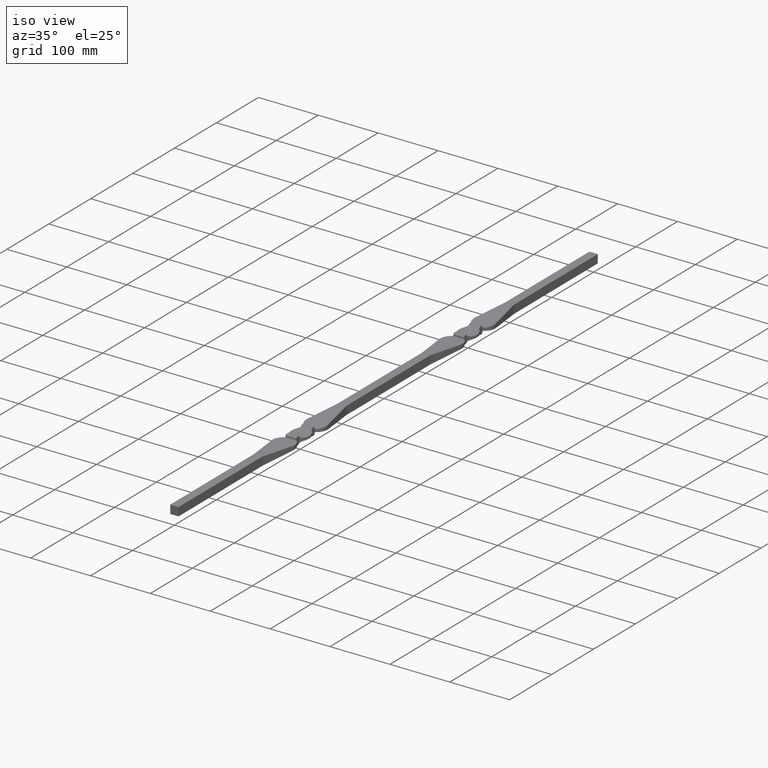
[diagram: clean part render]
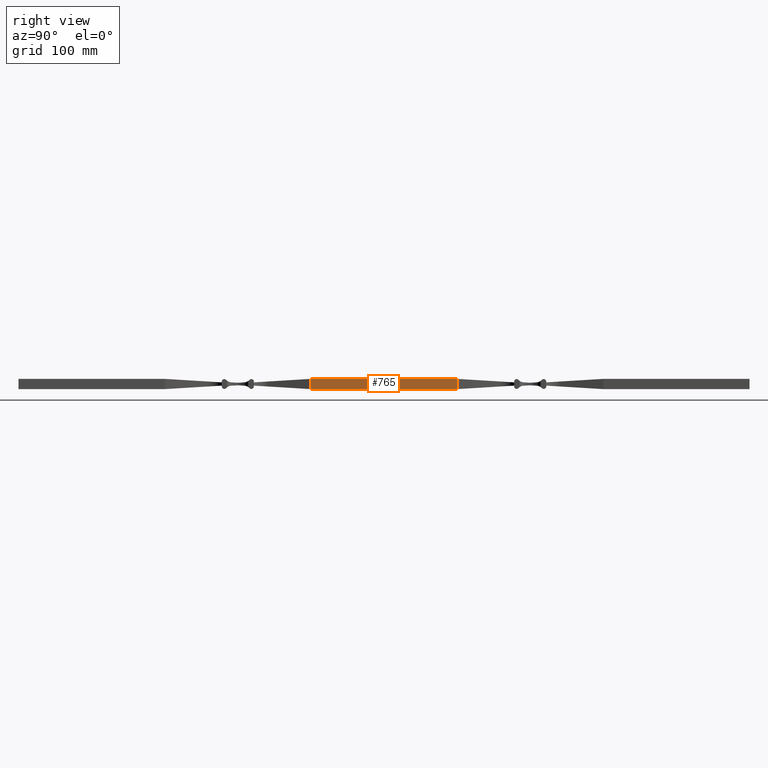
[diagram: tour spotlight — one face highlighted and labeled with its STEP entity id]
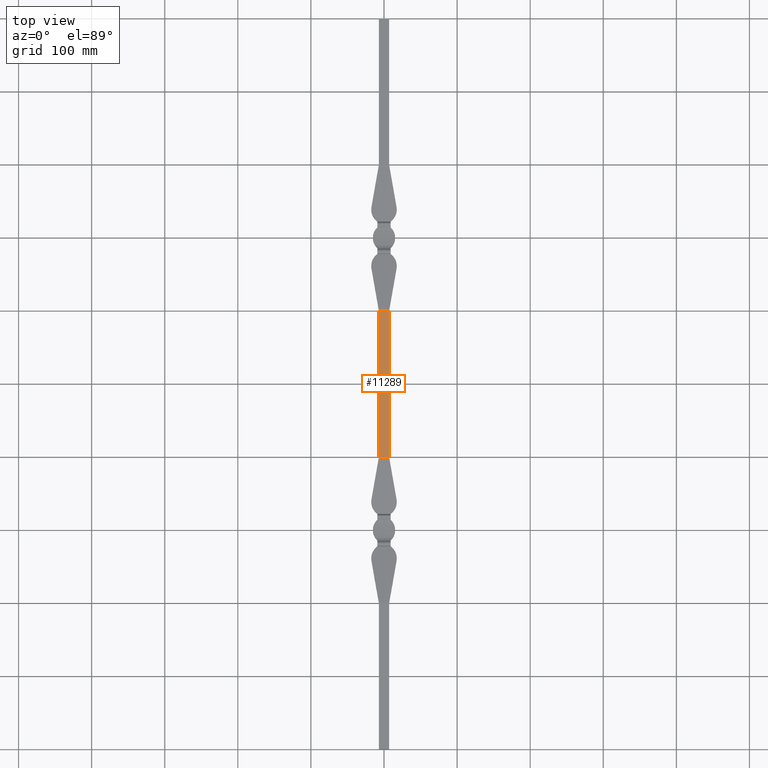
[diagram: tour spotlight — one face highlighted and labeled with its STEP entity id]
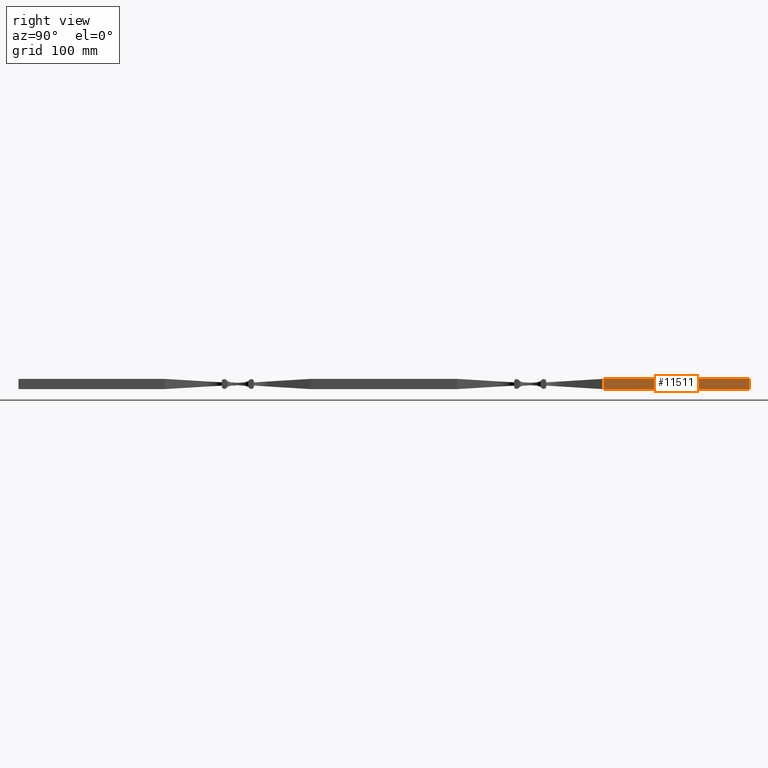
[diagram: tour spotlight — one face highlighted and labeled with its STEP entity id]
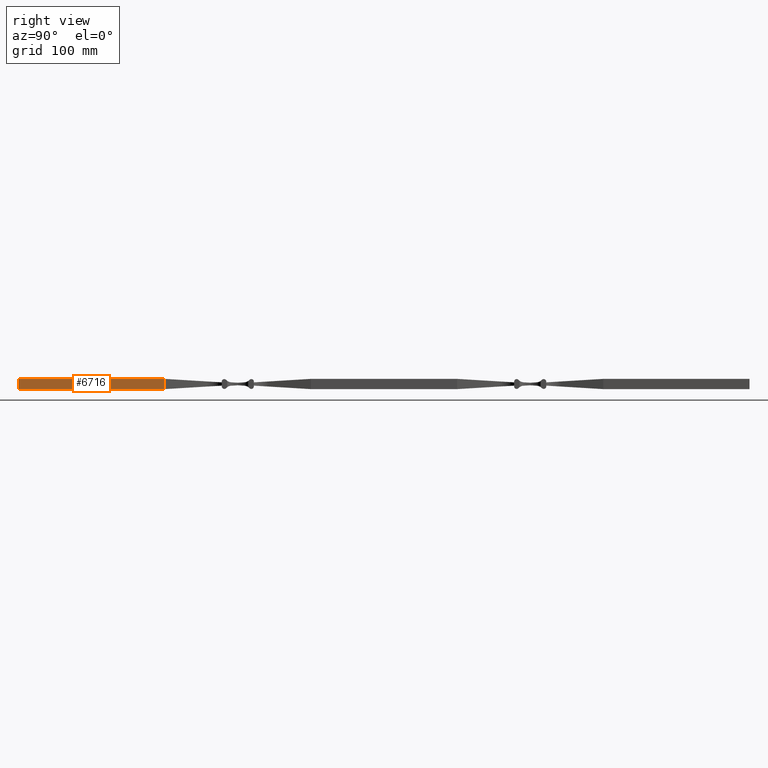
[diagram: tour spotlight — one face highlighted and labeled with its STEP entity id]
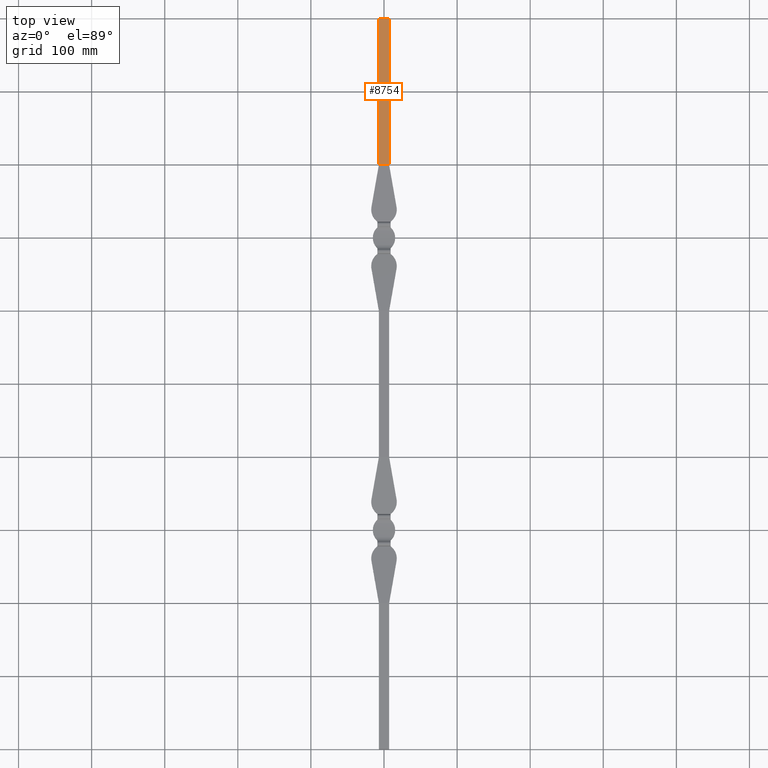
[diagram: tour spotlight — one face highlighted and labeled with its STEP entity id]
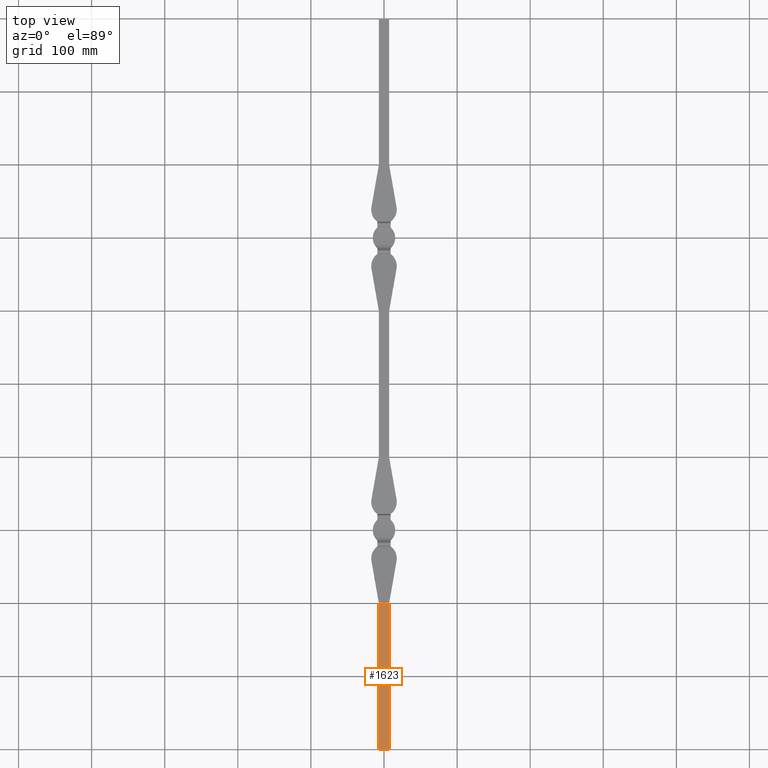
[diagram: tour spotlight — one face highlighted and labeled with its STEP entity id]
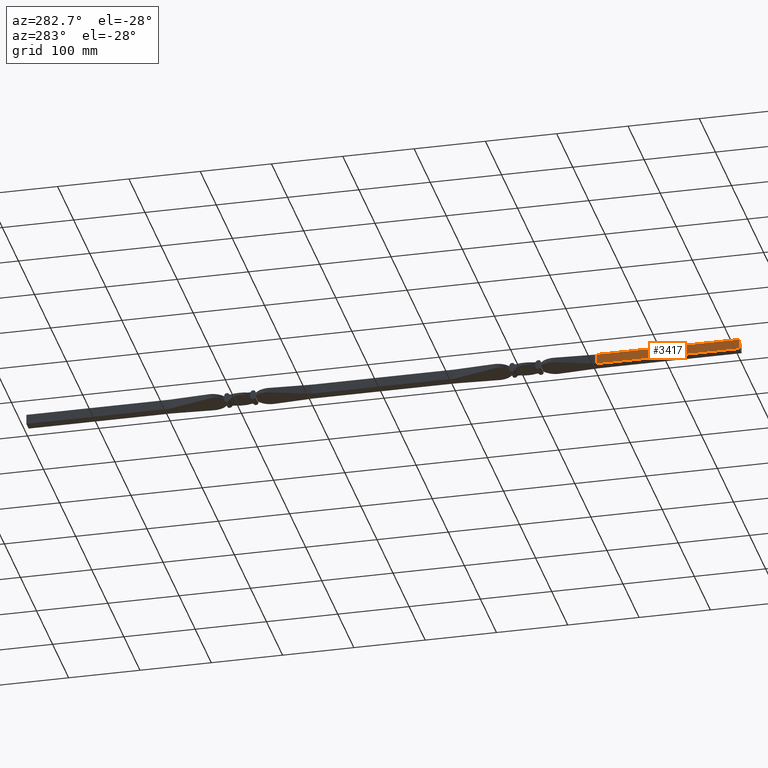
[diagram: tour spotlight — one face highlighted and labeled with its STEP entity id]
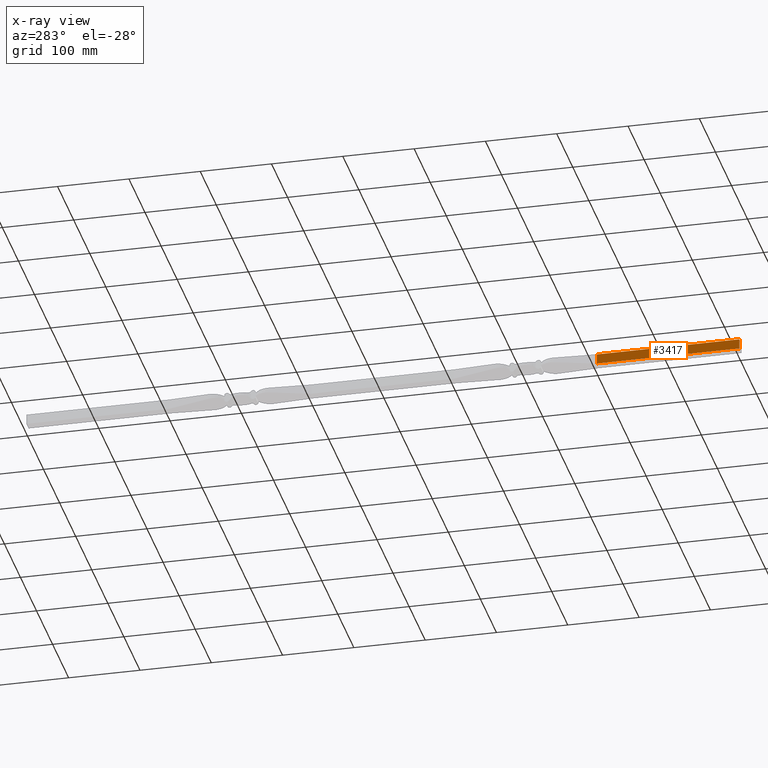
[diagram: x-ray of the same camera — body ghosted, this tour face saturated]
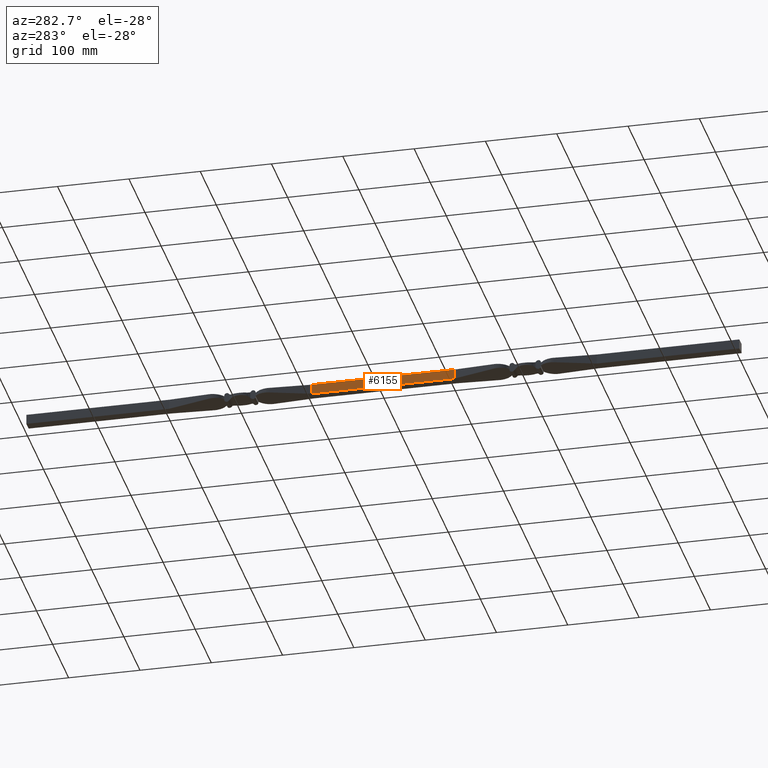
[diagram: tour spotlight — one face highlighted and labeled with its STEP entity id]
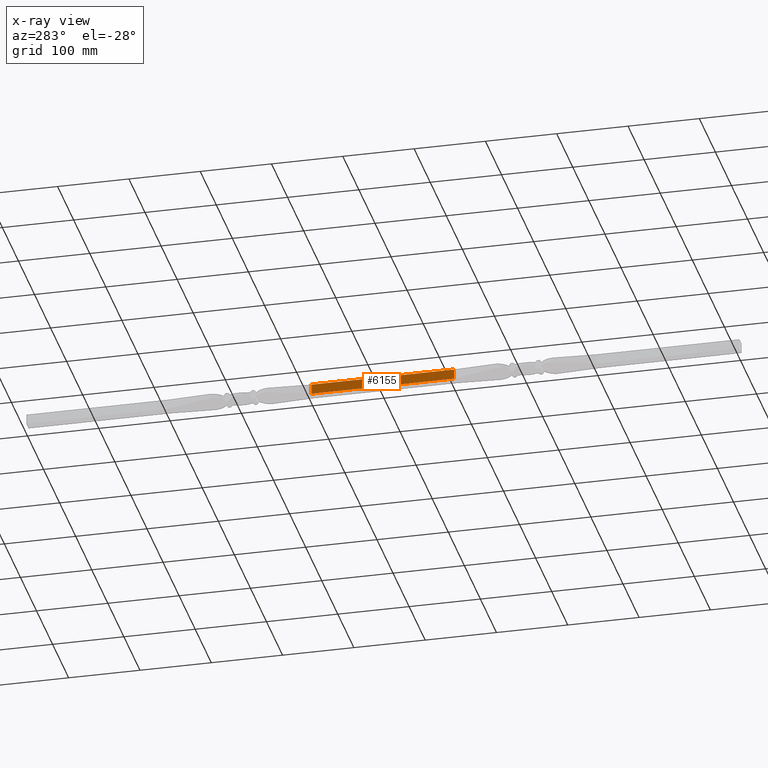
[diagram: x-ray of the same camera — body ghosted, this tour face saturated]
A machine part: a face-by-face anatomy tour. The part has 302 B-rep faces; the first image is the clean iso view, then the 8 largest visible faces are spotlighted one at a time (largest first), each with its STEP entity span.

Face 1 — right view, entity #765. In plain terms, the highlighted planar face has unit normal (-1, 0, 0).
Definition (entity closure, byte-faithful):
#228 = DIRECTION ( 'NONE',  ( 0.000000000000000000, 0.000000000000000000, -1.000000000000000000 ) ) ;
#368 = VERTEX_POINT ( 'NONE', #2850 ) ;
#765 = ADVANCED_FACE ( 'NONE', ( #7538 ), #7399, .F. ) ;
#926 = ORIENTED_EDGE ( 'NONE', *, *, #6815, .F. ) ;
#943 = DIRECTION ( 'NONE',  ( -1.000000000000000000, 4.625929269271485322E-15, 0.000000000000000000 ) ) ;
#1066 = VECTOR ( 'NONE', #228, 1000.000000000000000 ) ;
#1409 = CARTESIAN_POINT ( 'NONE',  ( 7.000000000000000888, -100.0000000000000000, 7.000000000000000000 ) ) ;
#2505 = VERTEX_POINT ( 'NONE', #5038 ) ;
#2771 = EDGE_CURVE ( 'NONE', #368, #12831, #13048, .T. ) ;
#2850 = CARTESIAN_POINT ( 'NONE',  ( 7.000000000000000888, -300.0000000000000000, 7.000000000000000000 ) ) ;
#3139 = CARTESIAN_POINT ( 'NONE',  ( 6.999999999998521183, -419.7989898732233769, -7.000000000000000000 ) ) ;
#3245 = VECTOR ( 'NONE', #10994, 1000.000000000000000 ) ;
#3404 = LINE ( 'NONE', #1409, #1066 ) ;
#3523 = VERTEX_POINT ( 'NONE', #10804 ) ;
#4047 = ORIENTED_EDGE ( 'NONE', *, *, #2771, .F. ) ;
#4194 = DIRECTION ( 'NONE',  ( -4.625929269271485322E-15, -1.000000000000000000, 0.000000000000000000 ) ) ;
#5038 = CARTESIAN_POINT ( 'NONE',  ( 7.000000000000000888, -300.0000000000000000, -7.000000000000000000 ) ) ;
#5173 = VECTOR ( 'NONE', #11213, 1000.000000000000000 ) ;
#5786 = DIRECTION ( 'NONE',  ( 4.625929269271485322E-15, 1.000000000000000000, -0.000000000000000000 ) ) ;
#6777 = EDGE_CURVE ( 'NONE', #368, #2505, #8105, .T. ) ;
#6815 = EDGE_CURVE ( 'NONE', #12831, #3523, #3404, .T. ) ;
#6911 = EDGE_CURVE ( 'NONE', #2505, #3523, #6939, .T. ) ;
#6939 = LINE ( 'NONE', #8044, #9297 ) ;
#7033 = CARTESIAN_POINT ( 'NONE',  ( 7.000000000000000888, -100.0000000000000284, 7.000000000000000000 ) ) ;
#7399 = PLANE ( 'NONE',  #8993 ) ;
#7538 = FACE_OUTER_BOUND ( 'NONE', #11767, .T. ) ;
#8044 = CARTESIAN_POINT ( 'NONE',  ( 6.999999999998521183, -419.7989898732233769, -7.000000000000000000 ) ) ;
#8105 = LINE ( 'NONE', #8797, #3245 ) ;
#8797 = CARTESIAN_POINT ( 'NONE',  ( 7.000000000000000888, -300.0000000000000568, 7.000000000000000000 ) ) ;
#8993 = AXIS2_PLACEMENT_3D ( 'NONE', #3139, #943, #4194 ) ;
#9297 = VECTOR ( 'NONE', #5786, 1000.000000000000000 ) ;
#10139 = CARTESIAN_POINT ( 'NONE',  ( 6.999999999998521183, -419.7989898732233769, 7.000000000000000000 ) ) ;
#10803 = ORIENTED_EDGE ( 'NONE', *, *, #6777, .T. ) ;
#10804 = CARTESIAN_POINT ( 'NONE',  ( 7.000000000000000888, -100.0000000000000284, -7.000000000000000000 ) ) ;
#10994 = DIRECTION ( 'NONE',  ( 0.000000000000000000, 0.000000000000000000, -1.000000000000000000 ) ) ;
#11213 = DIRECTION ( 'NONE',  ( 4.625929269271485322E-15, 1.000000000000000000, -0.000000000000000000 ) ) ;
#11637 = ORIENTED_EDGE ( 'NONE', *, *, #6911, .T. ) ;
#11767 = EDGE_LOOP ( 'NONE', ( #4047, #10803, #11637, #926 ) ) ;
#12831 = VERTEX_POINT ( 'NONE', #7033 ) ;
#13048 = LINE ( 'NONE', #10139, #5173 ) ;

Face 2 — top view, entity #11289. In plain terms, the highlighted planar face has unit normal (0, 0, -1).
Definition (entity closure, byte-faithful):
#368 = VERTEX_POINT ( 'NONE', #2850 ) ;
#762 = ORIENTED_EDGE ( 'NONE', *, *, #7687, .F. ) ;
#843 = VECTOR ( 'NONE', #4407, 1000.000000000000000 ) ;
#1443 = DIRECTION ( 'NONE',  ( -1.000000000000000000, 0.000000000000000000, 0.000000000000000000 ) ) ;
#1488 = CARTESIAN_POINT ( 'NONE',  ( 0.000000000000000000, -100.0000000000000000, 7.000000000000000000 ) ) ;
#1734 = ORIENTED_EDGE ( 'NONE', *, *, #8835, .F. ) ;
#1961 = DIRECTION ( 'NONE',  ( -1.000000000000000000, 0.000000000000000000, 0.000000000000000000 ) ) ;
#2044 = VECTOR ( 'NONE', #1961, 1000.000000000000000 ) ;
#2538 = AXIS2_PLACEMENT_3D ( 'NONE', #7061, #3903, #2883 ) ;
#2771 = EDGE_CURVE ( 'NONE', #368, #12831, #13048, .T. ) ;
#2850 = CARTESIAN_POINT ( 'NONE',  ( 7.000000000000000888, -300.0000000000000000, 7.000000000000000000 ) ) ;
#2883 = DIRECTION ( 'NONE',  ( -1.000000000000000000, 0.000000000000000000, 0.000000000000000000 ) ) ;
#3226 = CARTESIAN_POINT ( 'NONE',  ( -7.000000000000000888, -99.99999999999997158, 7.000000000000000000 ) ) ;
#3573 = LINE ( 'NONE', #1488, #10121 ) ;
#3903 = DIRECTION ( 'NONE',  ( 0.000000000000000000, 0.000000000000000000, -1.000000000000000000 ) ) ;
#4407 = DIRECTION ( 'NONE',  ( 4.625929269271485322E-15, 1.000000000000000000, -0.000000000000000000 ) ) ;
#4747 = ORIENTED_EDGE ( 'NONE', *, *, #6974, .T. ) ;
#5173 = VECTOR ( 'NONE', #11213, 1000.000000000000000 ) ;
#5470 = FACE_OUTER_BOUND ( 'NONE', #10005, .T. ) ;
#6055 = ORIENTED_EDGE ( 'NONE', *, *, #2771, .T. ) ;
#6073 = LINE ( 'NONE', #7622, #2044 ) ;
#6528 = LINE ( 'NONE', #9642, #843 ) ;
#6974 = EDGE_CURVE ( 'NONE', #12831, #8828, #3573, .T. ) ;
#7033 = CARTESIAN_POINT ( 'NONE',  ( 7.000000000000000888, -100.0000000000000284, 7.000000000000000000 ) ) ;
#7061 = CARTESIAN_POINT ( 'NONE',  ( 6.999999999998521183, -419.7989898732233769, 7.000000000000000000 ) ) ;
#7622 = CARTESIAN_POINT ( 'NONE',  ( 0.000000000000000000, -300.0000000000000568, 7.000000000000000000 ) ) ;
#7687 = EDGE_CURVE ( 'NONE', #368, #10944, #6073, .T. ) ;
#8828 = VERTEX_POINT ( 'NONE', #3226 ) ;
#8835 = EDGE_CURVE ( 'NONE', #10944, #8828, #6528, .T. ) ;
#9642 = CARTESIAN_POINT ( 'NONE',  ( -7.000000000001480593, -419.7989898732233200, 7.000000000000000000 ) ) ;
#10005 = EDGE_LOOP ( 'NONE', ( #1734, #762, #6055, #4747 ) ) ;
#10121 = VECTOR ( 'NONE', #1443, 1000.000000000000000 ) ;
#10139 = CARTESIAN_POINT ( 'NONE',  ( 6.999999999998521183, -419.7989898732233769, 7.000000000000000000 ) ) ;
#10944 = VERTEX_POINT ( 'NONE', #12747 ) ;
#11213 = DIRECTION ( 'NONE',  ( 4.625929269271485322E-15, 1.000000000000000000, -0.000000000000000000 ) ) ;
#11289 = ADVANCED_FACE ( 'NONE', ( #5470 ), #13467, .F. ) ;
#12747 = CARTESIAN_POINT ( 'NONE',  ( -7.000000000000000888, -300.0000000000000568, 7.000000000000000000 ) ) ;
#12831 = VERTEX_POINT ( 'NONE', #7033 ) ;
#13048 = LINE ( 'NONE', #10139, #5173 ) ;
#13467 = PLANE ( 'NONE',  #2538 ) ;

Face 3 — right view, entity #11511. In plain terms, the highlighted planar face has unit normal (-1, 0, 0).
Definition (entity closure, byte-faithful):
#118 = AXIS2_PLACEMENT_3D ( 'NONE', #5252, #8487, #10648 ) ;
#234 = ORIENTED_EDGE ( 'NONE', *, *, #1179, .F. ) ;
#300 = FACE_OUTER_BOUND ( 'NONE', #5943, .T. ) ;
#857 = EDGE_CURVE ( 'NONE', #12995, #2707, #7888, .T. ) ;
#955 = PLANE ( 'NONE',  #118 ) ;
#1179 = EDGE_CURVE ( 'NONE', #3096, #2707, #4713, .T. ) ;
#1551 = CARTESIAN_POINT ( 'NONE',  ( 6.999999999999998224, 300.0000000000000000, -7.000000000000000000 ) ) ;
#2551 = VECTOR ( 'NONE', #7658, 1000.000000000000000 ) ;
#2707 = VERTEX_POINT ( 'NONE', #11874 ) ;
#2897 = LINE ( 'NONE', #6712, #2551 ) ;
#3096 = VERTEX_POINT ( 'NONE', #1551 ) ;
#3109 = CARTESIAN_POINT ( 'NONE',  ( 6.999999999999998224, 619.7989898732232632, -7.000000000000000000 ) ) ;
#4512 = CARTESIAN_POINT ( 'NONE',  ( 6.999999999999998224, 100.0000000000000000, -7.000000000000000000 ) ) ;
#4703 = ORIENTED_EDGE ( 'NONE', *, *, #5067, .T. ) ;
#4713 = LINE ( 'NONE', #3109, #5530 ) ;
#4802 = LINE ( 'NONE', #12477, #13686 ) ;
#5067 = EDGE_CURVE ( 'NONE', #9271, #12995, #4802, .T. ) ;
#5252 = CARTESIAN_POINT ( 'NONE',  ( 6.999999999999998224, 619.7989898732232632, -7.000000000000000000 ) ) ;
#5530 = VECTOR ( 'NONE', #13679, 1000.000000000000000 ) ;
#5862 = VECTOR ( 'NONE', #7811, 1000.000000000000000 ) ;
#5943 = EDGE_LOOP ( 'NONE', ( #7401, #4703, #11658, #234 ) ) ;
#6712 = CARTESIAN_POINT ( 'NONE',  ( 6.999999999999998224, 300.0000000000000000, -7.000000000000000000 ) ) ;
#7303 = CARTESIAN_POINT ( 'NONE',  ( 7.000000000000000888, 100.0000000000000000, 7.000000000000000000 ) ) ;
#7376 = EDGE_CURVE ( 'NONE', #9271, #3096, #2897, .T. ) ;
#7401 = ORIENTED_EDGE ( 'NONE', *, *, #7376, .F. ) ;
#7658 = DIRECTION ( 'NONE',  ( -1.239088197126290817E-16, 0.000000000000000000, -1.000000000000000000 ) ) ;
#7811 = DIRECTION ( 'NONE',  ( -1.239088197126290817E-16, -0.000000000000000000, -1.000000000000000000 ) ) ;
#7888 = LINE ( 'NONE', #4512, #5862 ) ;
#8487 = DIRECTION ( 'NONE',  ( -1.000000000000000000, 0.000000000000000000, 1.239088197126290817E-16 ) ) ;
#9271 = VERTEX_POINT ( 'NONE', #9668 ) ;
#9668 = CARTESIAN_POINT ( 'NONE',  ( 6.999999999999999112, 300.0000000000000000, 7.000000000000000000 ) ) ;
#10648 = DIRECTION ( 'NONE',  ( 1.239088197126290817E-16, 0.000000000000000000, 1.000000000000000000 ) ) ;
#11511 = ADVANCED_FACE ( 'NONE', ( #300 ), #955, .F. ) ;
#11658 = ORIENTED_EDGE ( 'NONE', *, *, #857, .T. ) ;
#11874 = CARTESIAN_POINT ( 'NONE',  ( 7.000000000000000888, 100.0000000000000000, -7.000000000000000000 ) ) ;
#12477 = CARTESIAN_POINT ( 'NONE',  ( 7.000000000000000000, 619.7989898732232632, 7.000000000000000000 ) ) ;
#12995 = VERTEX_POINT ( 'NONE', #7303 ) ;
#13437 = DIRECTION ( 'NONE',  ( -0.000000000000000000, -1.000000000000000000, -0.000000000000000000 ) ) ;
#13679 = DIRECTION ( 'NONE',  ( -0.000000000000000000, -1.000000000000000000, -0.000000000000000000 ) ) ;
#13686 = VECTOR ( 'NONE', #13437, 1000.000000000000000 ) ;

Face 4 — right view, entity #6716. In plain terms, the highlighted planar face has unit normal (-1, 0, 0).
Definition (entity closure, byte-faithful):
#29 = EDGE_CURVE ( 'NONE', #5466, #12804, #3715, .T. ) ;
#457 = ORIENTED_EDGE ( 'NONE', *, *, #6511, .T. ) ;
#549 = VECTOR ( 'NONE', #2193, 1000.000000000000000 ) ;
#1046 = CARTESIAN_POINT ( 'NONE',  ( 6.999999999999998224, -700.0000000000000000, -7.000000000000000000 ) ) ;
#1157 = ORIENTED_EDGE ( 'NONE', *, *, #11072, .F. ) ;
#1496 = LINE ( 'NONE', #9350, #13698 ) ;
#1894 = ORIENTED_EDGE ( 'NONE', *, *, #11311, .F. ) ;
#2193 = DIRECTION ( 'NONE',  ( -1.239088197126290817E-16, -0.000000000000000000, -1.000000000000000000 ) ) ;
#2928 = DIRECTION ( 'NONE',  ( -1.239088197126290817E-16, 0.000000000000000000, -1.000000000000000000 ) ) ;
#3122 = DIRECTION ( 'NONE',  ( -0.000000000000000000, 1.000000000000000000, -0.000000000000000000 ) ) ;
#3715 = LINE ( 'NONE', #1046, #549 ) ;
#3747 = CARTESIAN_POINT ( 'NONE',  ( 7.000000000000000888, -500.0000000000000000, -7.000000000000000000 ) ) ;
#4556 = EDGE_LOOP ( 'NONE', ( #457, #1894, #1157, #8575 ) ) ;
#5466 = VERTEX_POINT ( 'NONE', #10410 ) ;
#6013 = CARTESIAN_POINT ( 'NONE',  ( 6.999999999999998224, -1019.798989873223150, -7.000000000000000000 ) ) ;
#6280 = LINE ( 'NONE', #6013, #8298 ) ;
#6511 = EDGE_CURVE ( 'NONE', #12804, #11902, #6280, .T. ) ;
#6716 = ADVANCED_FACE ( 'NONE', ( #7605 ), #12884, .F. ) ;
#7052 = DIRECTION ( 'NONE',  ( -0.000000000000000000, 1.000000000000000000, -0.000000000000000000 ) ) ;
#7576 = CARTESIAN_POINT ( 'NONE',  ( 6.999999999999998224, -1019.798989873223150, -7.000000000000000000 ) ) ;
#7605 = FACE_OUTER_BOUND ( 'NONE', #4556, .T. ) ;
#7906 = DIRECTION ( 'NONE',  ( -1.000000000000000000, 0.000000000000000000, 1.239088197126290817E-16 ) ) ;
#8048 = CARTESIAN_POINT ( 'NONE',  ( 6.999999999999998224, -700.0000000000000000, -7.000000000000000000 ) ) ;
#8298 = VECTOR ( 'NONE', #7052, 1000.000000000000000 ) ;
#8359 = LINE ( 'NONE', #11834, #12233 ) ;
#8575 = ORIENTED_EDGE ( 'NONE', *, *, #29, .T. ) ;
#9080 = AXIS2_PLACEMENT_3D ( 'NONE', #7576, #7906, #13057 ) ;
#9350 = CARTESIAN_POINT ( 'NONE',  ( 6.999999999999998224, -500.0000000000000000, -7.000000000000000000 ) ) ;
#10410 = CARTESIAN_POINT ( 'NONE',  ( 6.999999999999999112, -700.0000000000000000, 7.000000000000000000 ) ) ;
#11072 = EDGE_CURVE ( 'NONE', #5466, #13014, #8359, .T. ) ;
#11311 = EDGE_CURVE ( 'NONE', #13014, #11902, #1496, .T. ) ;
#11834 = CARTESIAN_POINT ( 'NONE',  ( 7.000000000000000000, -1019.798989873223150, 7.000000000000000000 ) ) ;
#11902 = VERTEX_POINT ( 'NONE', #3747 ) ;
#12233 = VECTOR ( 'NONE', #3122, 1000.000000000000000 ) ;
#12804 = VERTEX_POINT ( 'NONE', #8048 ) ;
#12870 = CARTESIAN_POINT ( 'NONE',  ( 7.000000000000000888, -500.0000000000000000, 7.000000000000000000 ) ) ;
#12884 = PLANE ( 'NONE',  #9080 ) ;
#13014 = VERTEX_POINT ( 'NONE', #12870 ) ;
#13057 = DIRECTION ( 'NONE',  ( 1.239088197126290817E-16, 0.000000000000000000, 1.000000000000000000 ) ) ;
#13698 = VECTOR ( 'NONE', #2928, 1000.000000000000000 ) ;

Face 5 — top view, entity #8754. In plain terms, the highlighted planar face has unit normal (0, 0, -1).
Definition (entity closure, byte-faithful):
#36 = DIRECTION ( 'NONE',  ( 0.000000000000000000, 0.000000000000000000, -1.000000000000000000 ) ) ;
#335 = CARTESIAN_POINT ( 'NONE',  ( -7.000000000000000888, 300.0000000000000000, 7.000000000000000000 ) ) ;
#1214 = VECTOR ( 'NONE', #10396, 1000.000000000000000 ) ;
#1979 = VECTOR ( 'NONE', #6304, 1000.000000000000000 ) ;
#2511 = AXIS2_PLACEMENT_3D ( 'NONE', #9736, #36, #3270 ) ;
#3270 = DIRECTION ( 'NONE',  ( -1.000000000000000000, 0.000000000000000000, -0.000000000000000000 ) ) ;
#3407 = CARTESIAN_POINT ( 'NONE',  ( -7.000000000000000888, 100.0000000000000000, 7.000000000000000000 ) ) ;
#3490 = LINE ( 'NONE', #12148, #4139 ) ;
#3962 = EDGE_CURVE ( 'NONE', #5929, #9271, #3490, .T. ) ;
#4139 = VECTOR ( 'NONE', #9935, 1000.000000000000000 ) ;
#4802 = LINE ( 'NONE', #12477, #13686 ) ;
#5067 = EDGE_CURVE ( 'NONE', #9271, #12995, #4802, .T. ) ;
#5929 = VERTEX_POINT ( 'NONE', #335 ) ;
#6038 = FACE_OUTER_BOUND ( 'NONE', #10592, .T. ) ;
#6304 = DIRECTION ( 'NONE',  ( -0.000000000000000000, -1.000000000000000000, -0.000000000000000000 ) ) ;
#7002 = ORIENTED_EDGE ( 'NONE', *, *, #7581, .T. ) ;
#7303 = CARTESIAN_POINT ( 'NONE',  ( 7.000000000000000888, 100.0000000000000000, 7.000000000000000000 ) ) ;
#7581 = EDGE_CURVE ( 'NONE', #8917, #12995, #12638, .T. ) ;
#7667 = LINE ( 'NONE', #13726, #1979 ) ;
#7738 = ORIENTED_EDGE ( 'NONE', *, *, #5067, .F. ) ;
#8754 = ADVANCED_FACE ( 'NONE', ( #6038 ), #11841, .F. ) ;
#8917 = VERTEX_POINT ( 'NONE', #3407 ) ;
#9271 = VERTEX_POINT ( 'NONE', #9668 ) ;
#9495 = ORIENTED_EDGE ( 'NONE', *, *, #3962, .F. ) ;
#9668 = CARTESIAN_POINT ( 'NONE',  ( 6.999999999999999112, 300.0000000000000000, 7.000000000000000000 ) ) ;
#9736 = CARTESIAN_POINT ( 'NONE',  ( -7.000000000000000888, 619.7989898732232632, 7.000000000000000000 ) ) ;
#9935 = DIRECTION ( 'NONE',  ( 1.000000000000000000, -0.000000000000000000, 0.000000000000000000 ) ) ;
#10396 = DIRECTION ( 'NONE',  ( 1.000000000000000000, 0.000000000000000000, 0.000000000000000000 ) ) ;
#10487 = CARTESIAN_POINT ( 'NONE',  ( -7.000000000000000888, 100.0000000000000000, 7.000000000000000000 ) ) ;
#10592 = EDGE_LOOP ( 'NONE', ( #9495, #12420, #7002, #7738 ) ) ;
#11435 = EDGE_CURVE ( 'NONE', #5929, #8917, #7667, .T. ) ;
#11841 = PLANE ( 'NONE',  #2511 ) ;
#12148 = CARTESIAN_POINT ( 'NONE',  ( -7.000000000000000888, 300.0000000000000000, 7.000000000000000000 ) ) ;
#12420 = ORIENTED_EDGE ( 'NONE', *, *, #11435, .T. ) ;
#12477 = CARTESIAN_POINT ( 'NONE',  ( 7.000000000000000000, 619.7989898732232632, 7.000000000000000000 ) ) ;
#12638 = LINE ( 'NONE', #10487, #1214 ) ;
#12995 = VERTEX_POINT ( 'NONE', #7303 ) ;
#13437 = DIRECTION ( 'NONE',  ( -0.000000000000000000, -1.000000000000000000, -0.000000000000000000 ) ) ;
#13686 = VECTOR ( 'NONE', #13437, 1000.000000000000000 ) ;
#13726 = CARTESIAN_POINT ( 'NONE',  ( -7.000000000000000888, 619.7989898732232632, 7.000000000000000000 ) ) ;

Face 6 — top view, entity #1623. In plain terms, the highlighted planar face has unit normal (-0, 0, -1).
Definition (entity closure, byte-faithful):
#374 = CARTESIAN_POINT ( 'NONE',  ( -7.000000000000000888, -1019.798989873223150, 7.000000000000000000 ) ) ;
#472 = VERTEX_POINT ( 'NONE', #8868 ) ;
#742 = LINE ( 'NONE', #10663, #8954 ) ;
#1294 = LINE ( 'NONE', #374, #6646 ) ;
#1310 = DIRECTION ( 'NONE',  ( -0.000000000000000000, 0.000000000000000000, -1.000000000000000000 ) ) ;
#1623 = ADVANCED_FACE ( 'NONE', ( #6058 ), #9924, .F. ) ;
#1840 = VERTEX_POINT ( 'NONE', #7797 ) ;
#2014 = LINE ( 'NONE', #10288, #3198 ) ;
#3122 = DIRECTION ( 'NONE',  ( -0.000000000000000000, 1.000000000000000000, -0.000000000000000000 ) ) ;
#3198 = VECTOR ( 'NONE', #9207, 1000.000000000000000 ) ;
#3772 = AXIS2_PLACEMENT_3D ( 'NONE', #4563, #1310, #4461 ) ;
#4461 = DIRECTION ( 'NONE',  ( -1.000000000000000000, -0.000000000000000000, 0.000000000000000000 ) ) ;
#4563 = CARTESIAN_POINT ( 'NONE',  ( -7.000000000000000888, -1019.798989873223150, 7.000000000000000000 ) ) ;
#5466 = VERTEX_POINT ( 'NONE', #10410 ) ;
#6058 = FACE_OUTER_BOUND ( 'NONE', #12133, .T. ) ;
#6411 = DIRECTION ( 'NONE',  ( 1.000000000000000000, 0.000000000000000000, 0.000000000000000000 ) ) ;
#6646 = VECTOR ( 'NONE', #7862, 1000.000000000000000 ) ;
#7797 = CARTESIAN_POINT ( 'NONE',  ( -7.000000000000000888, -500.0000000000000000, 7.000000000000000000 ) ) ;
#7862 = DIRECTION ( 'NONE',  ( -0.000000000000000000, 1.000000000000000000, -0.000000000000000000 ) ) ;
#8359 = LINE ( 'NONE', #11834, #12233 ) ;
#8868 = CARTESIAN_POINT ( 'NONE',  ( -7.000000000000000888, -700.0000000000000000, 7.000000000000000000 ) ) ;
#8954 = VECTOR ( 'NONE', #6411, 1000.000000000000000 ) ;
#9207 = DIRECTION ( 'NONE',  ( 1.000000000000000000, 0.000000000000000000, 0.000000000000000000 ) ) ;
#9241 = ORIENTED_EDGE ( 'NONE', *, *, #13699, .T. ) ;
#9924 = PLANE ( 'NONE',  #3772 ) ;
#10288 = CARTESIAN_POINT ( 'NONE',  ( -7.000000000000000888, -700.0000000000000000, 7.000000000000000000 ) ) ;
#10410 = CARTESIAN_POINT ( 'NONE',  ( 6.999999999999999112, -700.0000000000000000, 7.000000000000000000 ) ) ;
#10663 = CARTESIAN_POINT ( 'NONE',  ( -7.000000000000000888, -500.0000000000000000, 7.000000000000000000 ) ) ;
#11072 = EDGE_CURVE ( 'NONE', #5466, #13014, #8359, .T. ) ;
#11768 = ORIENTED_EDGE ( 'NONE', *, *, #12735, .F. ) ;
#11834 = CARTESIAN_POINT ( 'NONE',  ( 7.000000000000000000, -1019.798989873223150, 7.000000000000000000 ) ) ;
#12133 = EDGE_LOOP ( 'NONE', ( #13732, #13375, #11768, #9241 ) ) ;
#12233 = VECTOR ( 'NONE', #3122, 1000.000000000000000 ) ;
#12735 = EDGE_CURVE ( 'NONE', #472, #1840, #1294, .T. ) ;
#12870 = CARTESIAN_POINT ( 'NONE',  ( 7.000000000000000888, -500.0000000000000000, 7.000000000000000000 ) ) ;
#13014 = VERTEX_POINT ( 'NONE', #12870 ) ;
#13052 = EDGE_CURVE ( 'NONE', #1840, #13014, #742, .T. ) ;
#13375 = ORIENTED_EDGE ( 'NONE', *, *, #13052, .F. ) ;
#13699 = EDGE_CURVE ( 'NONE', #472, #5466, #2014, .T. ) ;
#13732 = ORIENTED_EDGE ( 'NONE', *, *, #11072, .T. ) ;

Face 7 — auxiliary view, entity #3417. An x-ray twin of the same camera follows (body ghosted, this face saturated) — the face is partly hidden behind the body. In plain terms, the highlighted planar face has unit normal (1, 0, -0).
Definition (entity closure, byte-faithful):
#95 = ORIENTED_EDGE ( 'NONE', *, *, #11172, .F. ) ;
#328 = EDGE_LOOP ( 'NONE', ( #6037, #95, #3419, #13582 ) ) ;
#374 = CARTESIAN_POINT ( 'NONE',  ( -7.000000000000000888, -1019.798989873223150, 7.000000000000000000 ) ) ;
#472 = VERTEX_POINT ( 'NONE', #8868 ) ;
#658 = EDGE_CURVE ( 'NONE', #9936, #5728, #2868, .T. ) ;
#899 = PLANE ( 'NONE',  #9848 ) ;
#1260 = DIRECTION ( 'NONE',  ( 1.000000000000000000, 0.000000000000000000, -1.239088197126290817E-16 ) ) ;
#1294 = LINE ( 'NONE', #374, #6646 ) ;
#1685 = LINE ( 'NONE', #4481, #6023 ) ;
#1840 = VERTEX_POINT ( 'NONE', #7797 ) ;
#2868 = LINE ( 'NONE', #11204, #4336 ) ;
#3417 = ADVANCED_FACE ( 'NONE', ( #9371 ), #899, .F. ) ;
#3419 = ORIENTED_EDGE ( 'NONE', *, *, #658, .F. ) ;
#3440 = CARTESIAN_POINT ( 'NONE',  ( -7.000000000000002665, -700.0000000000000000, -7.000000000000000000 ) ) ;
#4336 = VECTOR ( 'NONE', #12352, 1000.000000000000000 ) ;
#4481 = CARTESIAN_POINT ( 'NONE',  ( -7.000000000000002665, -700.0000000000000000, -7.000000000000000000 ) ) ;
#5324 = LINE ( 'NONE', #6722, #12885 ) ;
#5538 = CARTESIAN_POINT ( 'NONE',  ( -7.000000000000002665, -1019.798989873223150, -7.000000000000000000 ) ) ;
#5728 = VERTEX_POINT ( 'NONE', #10418 ) ;
#6023 = VECTOR ( 'NONE', #7408, 1000.000000000000000 ) ;
#6037 = ORIENTED_EDGE ( 'NONE', *, *, #12735, .T. ) ;
#6646 = VECTOR ( 'NONE', #7862, 1000.000000000000000 ) ;
#6722 = CARTESIAN_POINT ( 'NONE',  ( -7.000000000000002665, -500.0000000000000000, -7.000000000000000000 ) ) ;
#7408 = DIRECTION ( 'NONE',  ( 1.239088197126290817E-16, 0.000000000000000000, 1.000000000000000000 ) ) ;
#7797 = CARTESIAN_POINT ( 'NONE',  ( -7.000000000000000888, -500.0000000000000000, 7.000000000000000000 ) ) ;
#7862 = DIRECTION ( 'NONE',  ( -0.000000000000000000, 1.000000000000000000, -0.000000000000000000 ) ) ;
#8868 = CARTESIAN_POINT ( 'NONE',  ( -7.000000000000000888, -700.0000000000000000, 7.000000000000000000 ) ) ;
#9371 = FACE_OUTER_BOUND ( 'NONE', #328, .T. ) ;
#9561 = EDGE_CURVE ( 'NONE', #9936, #472, #1685, .T. ) ;
#9690 = DIRECTION ( 'NONE',  ( -1.239088197126290817E-16, -0.000000000000000000, -1.000000000000000000 ) ) ;
#9848 = AXIS2_PLACEMENT_3D ( 'NONE', #5538, #1260, #9690 ) ;
#9936 = VERTEX_POINT ( 'NONE', #3440 ) ;
#10418 = CARTESIAN_POINT ( 'NONE',  ( -7.000000000000002665, -500.0000000000000000, -7.000000000000000000 ) ) ;
#11029 = DIRECTION ( 'NONE',  ( 1.239088197126290817E-16, 0.000000000000000000, 1.000000000000000000 ) ) ;
#11172 = EDGE_CURVE ( 'NONE', #5728, #1840, #5324, .T. ) ;
#11204 = CARTESIAN_POINT ( 'NONE',  ( -7.000000000000002665, -1019.798989873223150, -7.000000000000000000 ) ) ;
#12352 = DIRECTION ( 'NONE',  ( -0.000000000000000000, 1.000000000000000000, -0.000000000000000000 ) ) ;
#12735 = EDGE_CURVE ( 'NONE', #472, #1840, #1294, .T. ) ;
#12885 = VECTOR ( 'NONE', #11029, 1000.000000000000000 ) ;
#13582 = ORIENTED_EDGE ( 'NONE', *, *, #9561, .T. ) ;

Face 8 — auxiliary view, entity #6155. An x-ray twin of the same camera follows (body ghosted, this face saturated) — the face is partly hidden behind the body. In plain terms, the highlighted planar face has unit normal (1, -0, 0).
Definition (entity closure, byte-faithful):
#146 = VECTOR ( 'NONE', #4940, 1000.000000000000000 ) ;
#500 = EDGE_LOOP ( 'NONE', ( #2825, #9508, #11423, #9556 ) ) ;
#685 = VERTEX_POINT ( 'NONE', #10180 ) ;
#843 = VECTOR ( 'NONE', #4407, 1000.000000000000000 ) ;
#1278 = DIRECTION ( 'NONE',  ( 4.625929269271485322E-15, 1.000000000000000000, 0.000000000000000000 ) ) ;
#1287 = VERTEX_POINT ( 'NONE', #4583 ) ;
#1668 = VECTOR ( 'NONE', #12698, 1000.000000000000000 ) ;
#2160 = LINE ( 'NONE', #9917, #7525 ) ;
#2449 = EDGE_CURVE ( 'NONE', #10944, #1287, #6018, .T. ) ;
#2825 = ORIENTED_EDGE ( 'NONE', *, *, #8889, .F. ) ;
#3226 = CARTESIAN_POINT ( 'NONE',  ( -7.000000000000000888, -99.99999999999997158, 7.000000000000000000 ) ) ;
#3380 = CARTESIAN_POINT ( 'NONE',  ( -7.000000000001480593, -419.7989898732233200, 7.000000000000000000 ) ) ;
#3857 = AXIS2_PLACEMENT_3D ( 'NONE', #3380, #12984, #1278 ) ;
#4384 = PLANE ( 'NONE',  #3857 ) ;
#4407 = DIRECTION ( 'NONE',  ( 4.625929269271485322E-15, 1.000000000000000000, -0.000000000000000000 ) ) ;
#4583 = CARTESIAN_POINT ( 'NONE',  ( -7.000000000000000888, -300.0000000000000568, -7.000000000000000000 ) ) ;
#4940 = DIRECTION ( 'NONE',  ( 0.000000000000000000, -0.000000000000000000, -1.000000000000000000 ) ) ;
#5130 = CARTESIAN_POINT ( 'NONE',  ( -7.000000000000000888, -300.0000000000000568, 7.000000000000000000 ) ) ;
#5175 = CARTESIAN_POINT ( 'NONE',  ( -7.000000000000000888, -100.0000000000000000, 7.000000000000000000 ) ) ;
#6018 = LINE ( 'NONE', #5130, #146 ) ;
#6155 = ADVANCED_FACE ( 'NONE', ( #11656 ), #4384, .F. ) ;
#6528 = LINE ( 'NONE', #9642, #843 ) ;
#7525 = VECTOR ( 'NONE', #11937, 1000.000000000000000 ) ;
#8024 = LINE ( 'NONE', #5175, #1668 ) ;
#8828 = VERTEX_POINT ( 'NONE', #3226 ) ;
#8835 = EDGE_CURVE ( 'NONE', #10944, #8828, #6528, .T. ) ;
#8889 = EDGE_CURVE ( 'NONE', #1287, #685, #2160, .T. ) ;
#9508 = ORIENTED_EDGE ( 'NONE', *, *, #2449, .F. ) ;
#9556 = ORIENTED_EDGE ( 'NONE', *, *, #9789, .T. ) ;
#9642 = CARTESIAN_POINT ( 'NONE',  ( -7.000000000001480593, -419.7989898732233200, 7.000000000000000000 ) ) ;
#9789 = EDGE_CURVE ( 'NONE', #8828, #685, #8024, .T. ) ;
#9917 = CARTESIAN_POINT ( 'NONE',  ( -7.000000000001480593, -419.7989898732233200, -7.000000000000000000 ) ) ;
#10180 = CARTESIAN_POINT ( 'NONE',  ( -7.000000000000000888, -100.0000000000000000, -7.000000000000000000 ) ) ;
#10944 = VERTEX_POINT ( 'NONE', #12747 ) ;
#11423 = ORIENTED_EDGE ( 'NONE', *, *, #8835, .T. ) ;
#11656 = FACE_OUTER_BOUND ( 'NONE', #500, .T. ) ;
#11937 = DIRECTION ( 'NONE',  ( 4.625929269271485322E-15, 1.000000000000000000, -0.000000000000000000 ) ) ;
#12698 = DIRECTION ( 'NONE',  ( -0.000000000000000000, 0.000000000000000000, -1.000000000000000000 ) ) ;
#12747 = CARTESIAN_POINT ( 'NONE',  ( -7.000000000000000888, -300.0000000000000568, 7.000000000000000000 ) ) ;
#12984 = DIRECTION ( 'NONE',  ( 1.000000000000000000, -4.625929269271485322E-15, 0.000000000000000000 ) ) ;